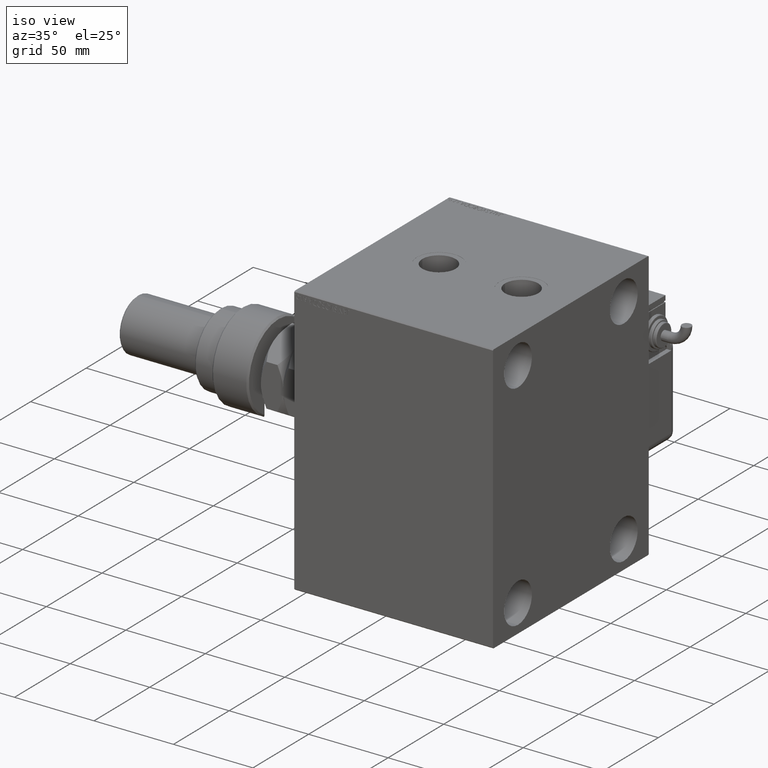
[diagram: clean part render]
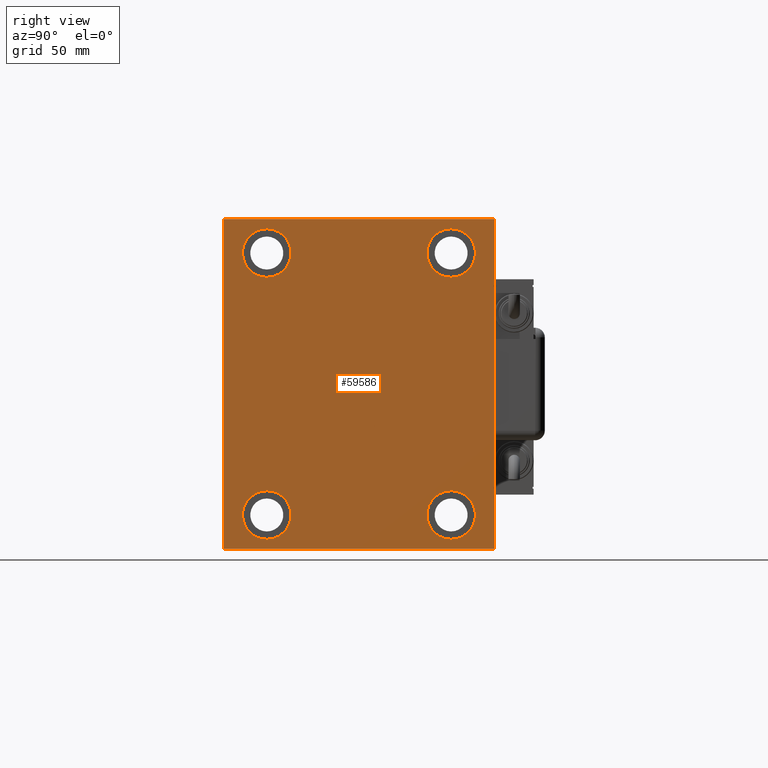
[diagram: tour spotlight — one face highlighted and labeled with its STEP entity id]
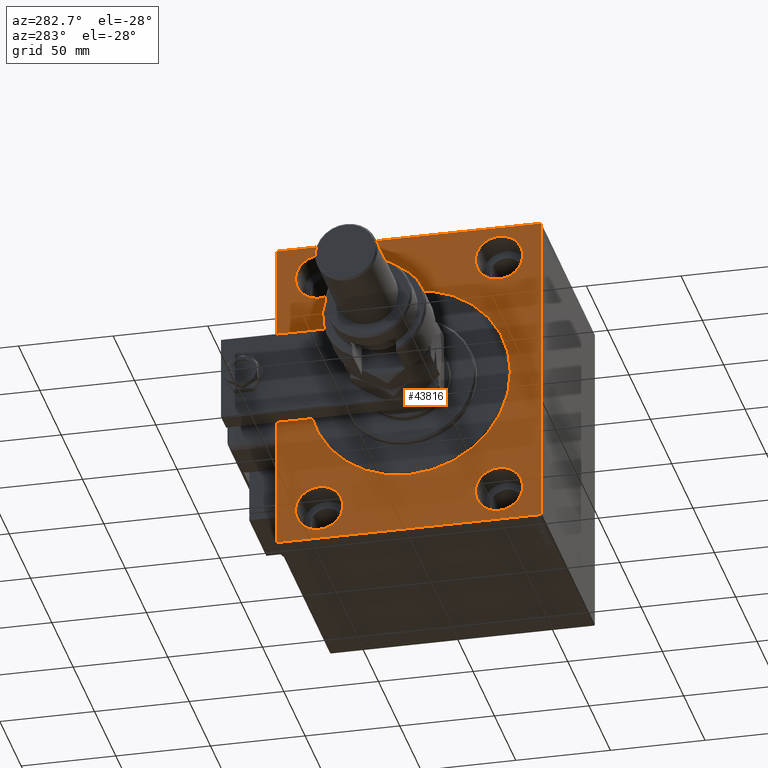
[diagram: tour spotlight — one face highlighted and labeled with its STEP entity id]
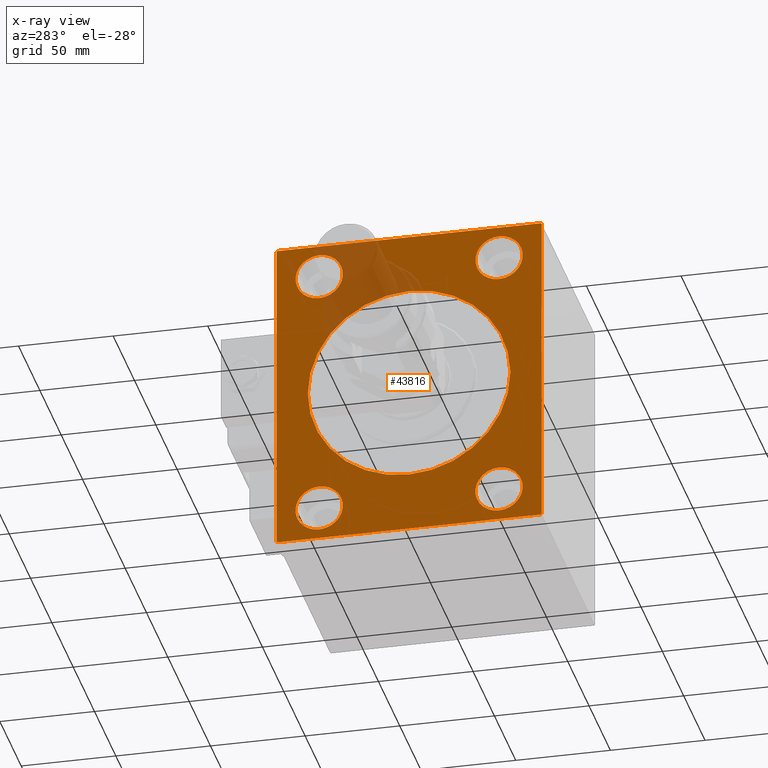
[diagram: x-ray of the same camera — body ghosted, this tour face saturated]
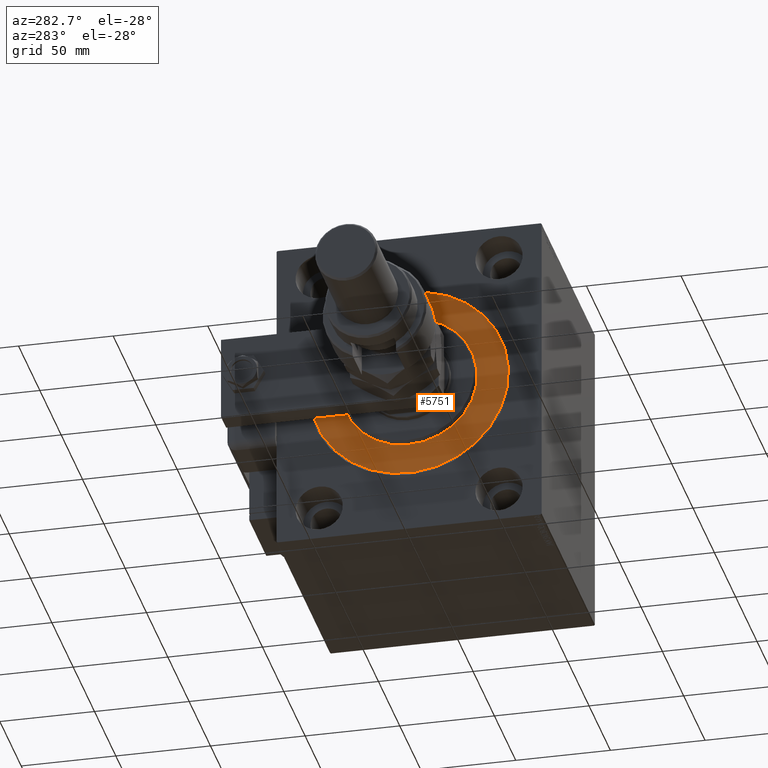
[diagram: tour spotlight — one face highlighted and labeled with its STEP entity id]
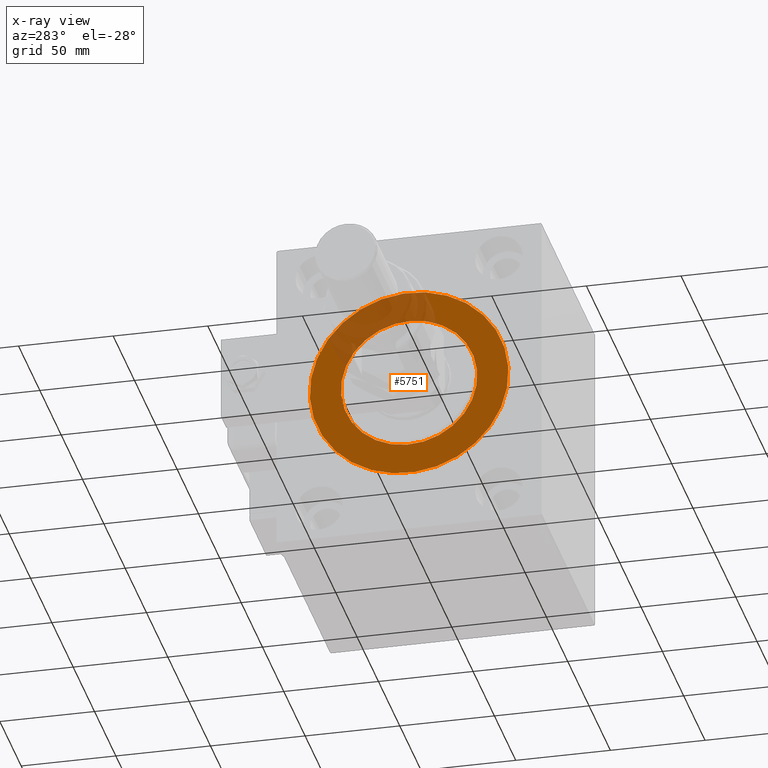
[diagram: x-ray of the same camera — body ghosted, this tour face saturated]
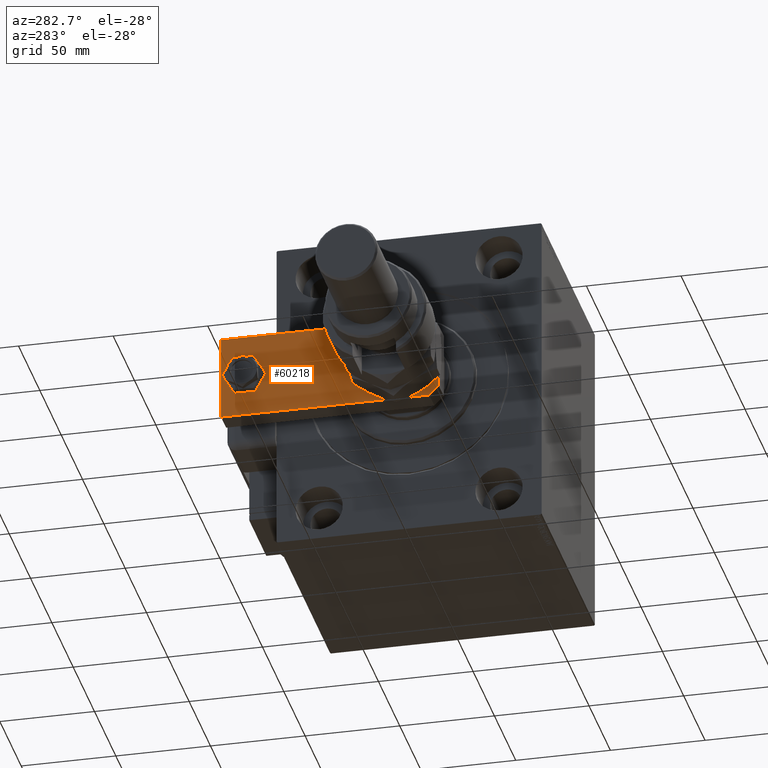
[diagram: tour spotlight — one face highlighted and labeled with its STEP entity id]
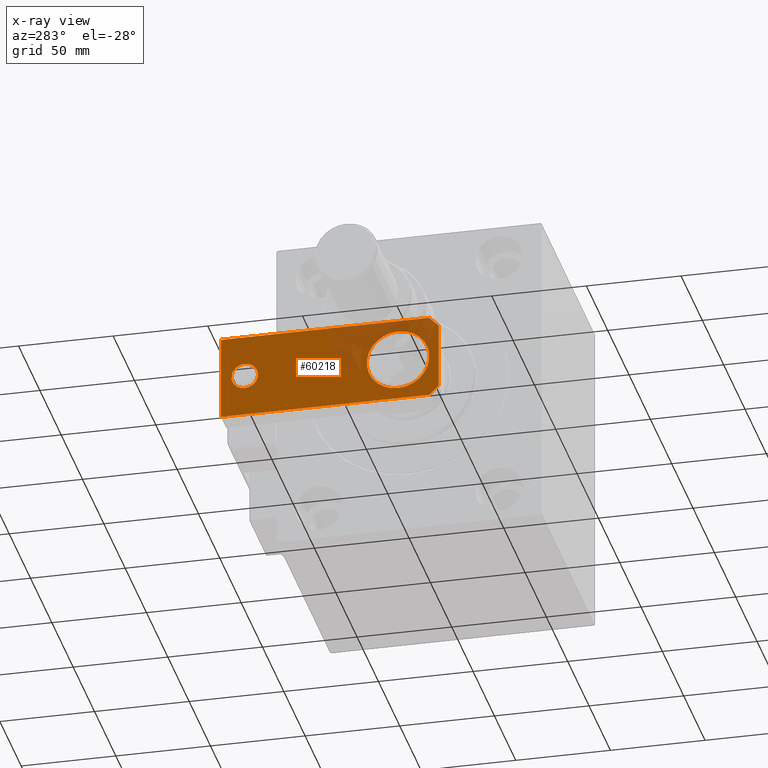
[diagram: x-ray of the same camera — body ghosted, this tour face saturated]
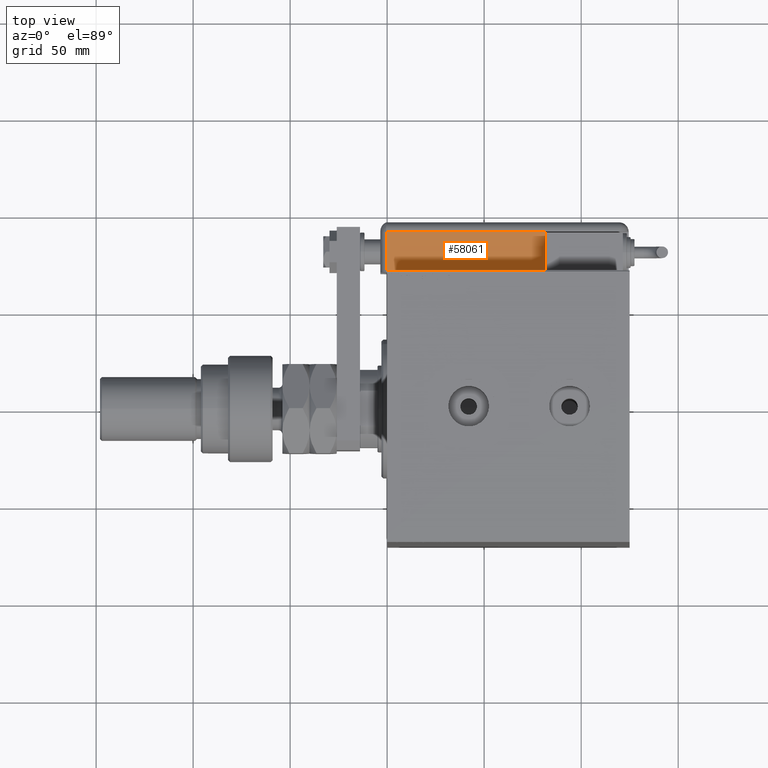
[diagram: tour spotlight — one face highlighted and labeled with its STEP entity id]
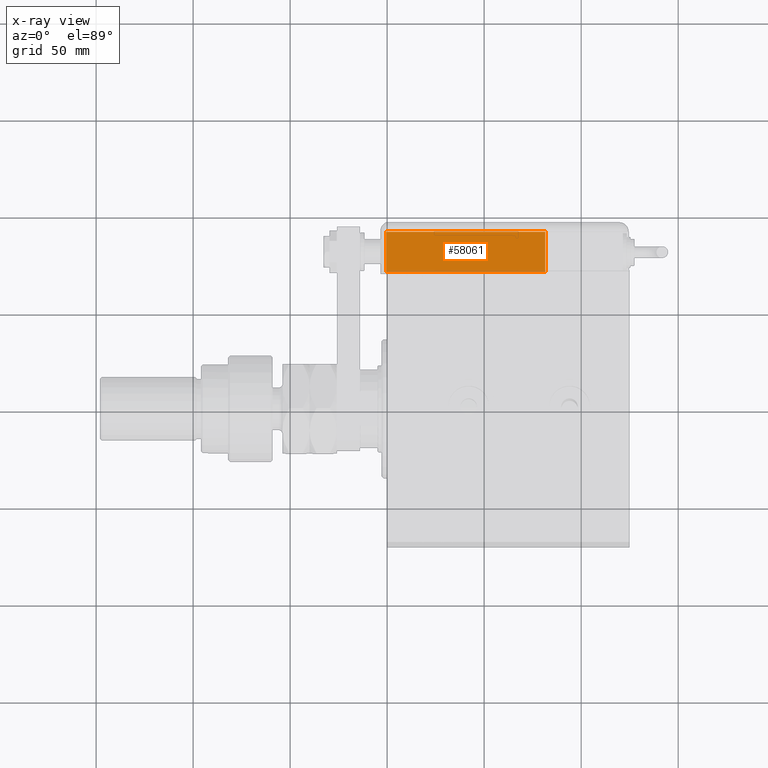
[diagram: x-ray of the same camera — body ghosted, this tour face saturated]
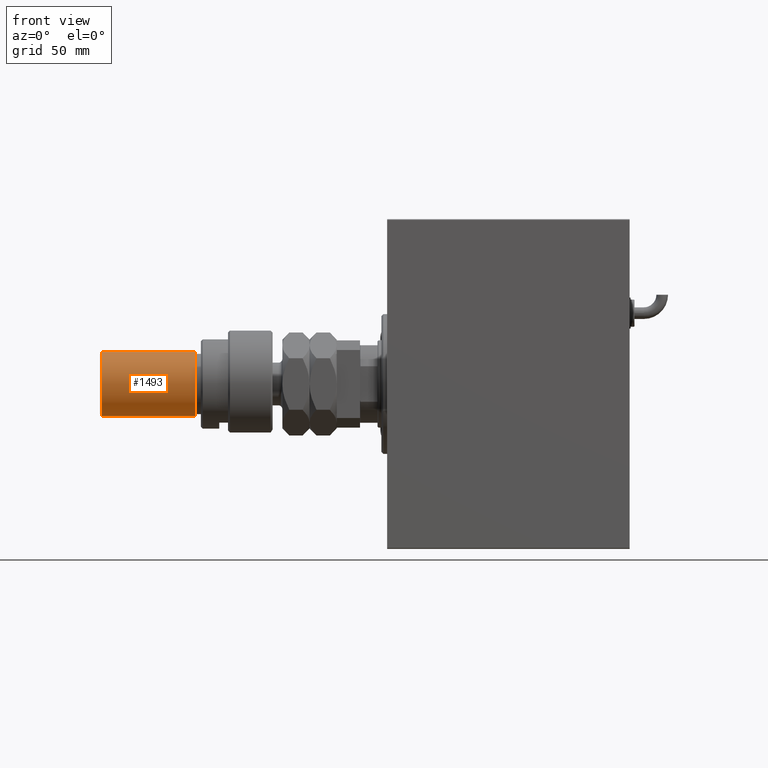
[diagram: tour spotlight — one face highlighted and labeled with its STEP entity id]
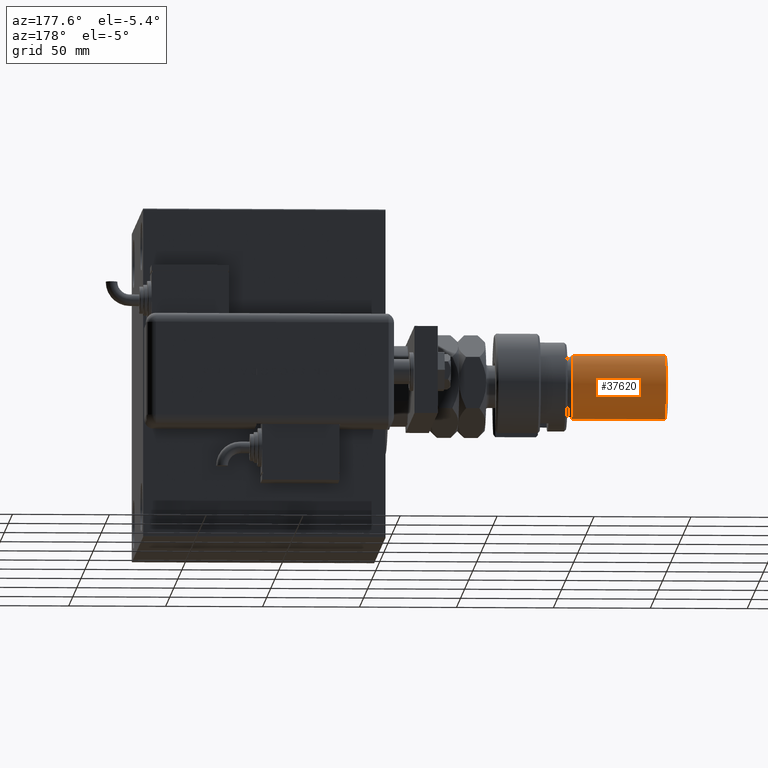
[diagram: tour spotlight — one face highlighted and labeled with its STEP entity id]
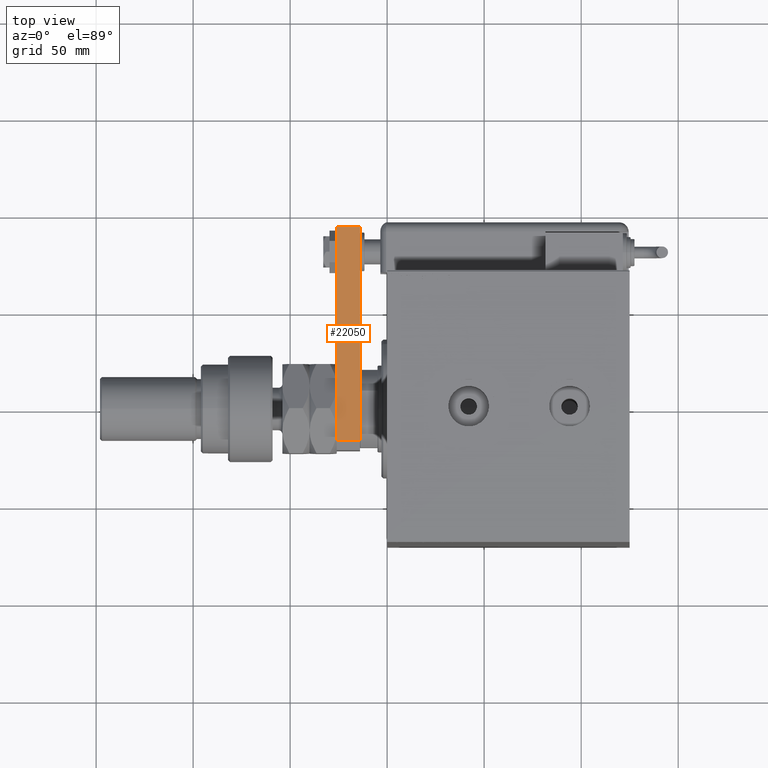
[diagram: tour spotlight — one face highlighted and labeled with its STEP entity id]
A machine part: a face-by-face anatomy tour. The part has 1335 B-rep faces; the first image is the clean iso view, then the 8 largest visible faces are spotlighted one at a time (largest first), each with its STEP entity span.

Face 1 — right view, entity #59586. In plain terms, the highlighted planar face has unit normal (1, 0, 0).
Definition (entity closure, byte-faithful):
#56 = EDGE_CURVE ( 'NONE', #57314, #31210, #47258, .T. ) ;
#1873 = EDGE_CURVE ( 'NONE', #26812, #49367, #43781, .T. ) ;
#2332 = DIRECTION ( 'NONE',  ( -1.000000000000000000, -0.000000000000000000, -0.000000000000000000 ) ) ;
#2488 = VECTOR ( 'NONE', #44302, 1000.000000000000000 ) ;
#2579 = EDGE_LOOP ( 'NONE', ( #30043, #35224, #10432, #5074, #47961, #43909, #60951, #13353 ) ) ;
#3540 = DIRECTION ( 'NONE',  ( 0.000000000000000000, -0.7071067811865474617, -0.7071067811865474617 ) ) ;
#4484 = CARTESIAN_POINT ( 'NONE',  ( 125.0000000000000000, -47.49999999999997868, 80.00000000000001421 ) ) ;
#5074 = ORIENTED_EDGE ( 'NONE', *, *, #47473, .T. ) ;
#5079 = CARTESIAN_POINT ( 'NONE',  ( 125.0000000000000000, -69.49999999999994316, -85.00000000000002842 ) ) ;
#5212 = CARTESIAN_POINT ( 'NONE',  ( 125.0000000000000000, 47.50000000000000711, 80.00000000000001421 ) ) ;
#5558 = CARTESIAN_POINT ( 'NONE',  ( 125.0000000000000000, 69.50000000000001421, -85.00000000000001421 ) ) ;
#5881 = AXIS2_PLACEMENT_3D ( 'NONE', #17662, #37005, #13212 ) ;
#5982 = FACE_BOUND ( 'NONE', #47194, .T. ) ;
#6130 = DIRECTION ( 'NONE',  ( 0.000000000000000000, 0.000000000000000000, 1.000000000000000000 ) ) ;
#6482 = ORIENTED_EDGE ( 'NONE', *, *, #27429, .T. ) ;
#6885 = CIRCLE ( 'NONE', #5881, 12.50000000000001066 ) ;
#8315 = CARTESIAN_POINT ( 'NONE',  ( 125.0000000000000000, -77.24999999999997158, 77.24999999999997158 ) ) ;
#9394 = DIRECTION ( 'NONE',  ( 0.000000000000000000, 0.000000000000000000, 1.000000000000000000 ) ) ;
#9511 = FACE_BOUND ( 'NONE', #48736, .T. ) ;
#9583 = AXIS2_PLACEMENT_3D ( 'NONE', #43424, #38675, #34839 ) ;
#10103 = DIRECTION ( 'NONE',  ( 0.000000000000000000, 0.000000000000000000, 1.000000000000000000 ) ) ;
#10432 = ORIENTED_EDGE ( 'NONE', *, *, #45859, .T. ) ;
#10593 = CARTESIAN_POINT ( 'NONE',  ( 125.0000000000000000, -47.49999999999999289, -67.50000000000000000 ) ) ;
#11560 = VERTEX_POINT ( 'NONE', #5079 ) ;
#12331 = CARTESIAN_POINT ( 'NONE',  ( 125.0000000000000000, 69.49999999999998579, 85.00000000000000000 ) ) ;
#12345 = VERTEX_POINT ( 'NONE', #20058 ) ;
#12683 = DIRECTION ( 'NONE',  ( -1.000000000000000000, -0.000000000000000000, -0.000000000000000000 ) ) ;
#13212 = DIRECTION ( 'NONE',  ( 0.000000000000000000, 0.000000000000000000, 1.000000000000000000 ) ) ;
#13353 = ORIENTED_EDGE ( 'NONE', *, *, #48407, .T. ) ;
#14136 = DIRECTION ( 'NONE',  ( -1.000000000000000000, -0.000000000000000000, -0.000000000000000000 ) ) ;
#14437 = DIRECTION ( 'NONE',  ( 0.000000000000000000, 0.000000000000000000, -1.000000000000000000 ) ) ;
#15239 = AXIS2_PLACEMENT_3D ( 'NONE', #31799, #23206, #37177 ) ;
#15506 = FACE_OUTER_BOUND ( 'NONE', #2579, .T. ) ;
#15579 = VERTEX_POINT ( 'NONE', #46249 ) ;
#15617 = ORIENTED_EDGE ( 'NONE', *, *, #56, .T. ) ;
#15680 = EDGE_CURVE ( 'NONE', #40875, #15579, #39525, .T. ) ;
#15930 = ORIENTED_EDGE ( 'NONE', *, *, #48597, .T. ) ;
#16084 = VERTEX_POINT ( 'NONE', #55214 ) ;
#16224 = ORIENTED_EDGE ( 'NONE', *, *, #30687, .T. ) ;
#16965 = CARTESIAN_POINT ( 'NONE',  ( 125.0000000000000000, 70.00000000000001421, 84.49999999999995737 ) ) ;
#17441 = CARTESIAN_POINT ( 'NONE',  ( 125.0000000000000000, -47.49999999999999289, -67.50000000000000000 ) ) ;
#17662 = CARTESIAN_POINT ( 'NONE',  ( 125.0000000000000000, 47.50000000000000711, 67.50000000000000000 ) ) ;
#17911 = CARTESIAN_POINT ( 'NONE',  ( 125.0000000000000000, 77.25000000000096634, 77.24999999999883471 ) ) ;
#19101 = EDGE_CURVE ( 'NONE', #11560, #40875, #48770, .T. ) ;
#19645 = VERTEX_POINT ( 'NONE', #16965 ) ;
#20058 = CARTESIAN_POINT ( 'NONE',  ( 125.0000000000000000, -69.99999999999998579, 84.49999999999995737 ) ) ;
#20219 = ORIENTED_EDGE ( 'NONE', *, *, #60916, .T. ) ;
#20254 = FACE_BOUND ( 'NONE', #21758, .T. ) ;
#21108 = CIRCLE ( 'NONE', #27179, 12.49999999999999645 ) ;
#21304 = VERTEX_POINT ( 'NONE', #24612 ) ;
#21758 = EDGE_LOOP ( 'NONE', ( #6482, #15930 ) ) ;
#21920 = DIRECTION ( 'NONE',  ( 0.000000000000000000, 0.000000000000000000, 1.000000000000000000 ) ) ;
#22055 = AXIS2_PLACEMENT_3D ( 'NONE', #38821, #30552, #6130 ) ;
#22358 = CARTESIAN_POINT ( 'NONE',  ( 125.0000000000000000, -47.49999999999999289, -55.00000000000000711 ) ) ;
#22504 = DIRECTION ( 'NONE',  ( -1.000000000000000000, -0.000000000000000000, -0.000000000000000000 ) ) ;
#23206 = DIRECTION ( 'NONE',  ( -1.000000000000000000, -0.000000000000000000, -0.000000000000000000 ) ) ;
#23329 = VECTOR ( 'NONE', #47076, 1000.000000000000000 ) ;
#24573 = DIRECTION ( 'NONE',  ( -1.000000000000000000, -0.000000000000000000, -0.000000000000000000 ) ) ;
#24612 = CARTESIAN_POINT ( 'NONE',  ( 125.0000000000000000, 47.50000000000000711, -55.00000000000000711 ) ) ;
#25077 = VECTOR ( 'NONE', #58992, 1000.000000000000000 ) ;
#25374 = CIRCLE ( 'NONE', #15239, 12.50000000000001066 ) ;
#25953 = VERTEX_POINT ( 'NONE', #4484 ) ;
#25993 = VECTOR ( 'NONE', #55380, 1000.000000000000000 ) ;
#26264 = EDGE_CURVE ( 'NONE', #15579, #19645, #56014, .T. ) ;
#26782 = VECTOR ( 'NONE', #14437, 1000.000000000000000 ) ;
#26812 = VERTEX_POINT ( 'NONE', #12331 ) ;
#27106 = DIRECTION ( 'NONE',  ( -0.000000000000000000, 0.7071067811865574537, -0.7071067811865376918 ) ) ;
#27162 = CARTESIAN_POINT ( 'NONE',  ( 125.0000000000000000, 70.00000000000002842, -85.00000000000001421 ) ) ;
#27179 = AXIS2_PLACEMENT_3D ( 'NONE', #56123, #12683, #10103 ) ;
#27429 = EDGE_CURVE ( 'NONE', #42809, #25953, #37189, .T. ) ;
#28031 = AXIS2_PLACEMENT_3D ( 'NONE', #10593, #24573, #21920 ) ;
#30043 = ORIENTED_EDGE ( 'NONE', *, *, #1873, .T. ) ;
#30088 = PLANE ( 'NONE',  #9583 ) ;
#30292 = EDGE_CURVE ( 'NONE', #49367, #12345, #31479, .T. ) ;
#30552 = DIRECTION ( 'NONE',  ( -1.000000000000000000, -0.000000000000000000, -0.000000000000000000 ) ) ;
#30687 = EDGE_CURVE ( 'NONE', #21304, #56184, #21108, .T. ) ;
#31163 = VECTOR ( 'NONE', #3540, 1000.000000000000114 ) ;
#31210 = VERTEX_POINT ( 'NONE', #22358 ) ;
#31479 = LINE ( 'NONE', #8315, #31163 ) ;
#31605 = ORIENTED_EDGE ( 'NONE', *, *, #33174, .T. ) ;
#31799 = CARTESIAN_POINT ( 'NONE',  ( 125.0000000000000000, -47.49999999999997868, 67.50000000000000000 ) ) ;
#33174 = EDGE_CURVE ( 'NONE', #56184, #21304, #37228, .T. ) ;
#33506 = AXIS2_PLACEMENT_3D ( 'NONE', #17441, #22504, #51352 ) ;
#33955 = CARTESIAN_POINT ( 'NONE',  ( 125.0000000000000000, 70.00000000000001421, 85.00000000000000000 ) ) ;
#34084 = CARTESIAN_POINT ( 'NONE',  ( 125.0000000000000000, -69.99999999999998579, 84.99999999999998579 ) ) ;
#34486 = CIRCLE ( 'NONE', #33506, 12.49999999999999645 ) ;
#34765 = EDGE_CURVE ( 'NONE', #16084, #52095, #6885, .T. ) ;
#34839 = DIRECTION ( 'NONE',  ( 0.000000000000000000, 0.000000000000000000, -1.000000000000000000 ) ) ;
#35224 = ORIENTED_EDGE ( 'NONE', *, *, #30292, .T. ) ;
#35263 = EDGE_LOOP ( 'NONE', ( #52391, #20219 ) ) ;
#36336 = CARTESIAN_POINT ( 'NONE',  ( 125.0000000000000000, -47.49999999999997868, 55.00000000000000000 ) ) ;
#37005 = DIRECTION ( 'NONE',  ( -1.000000000000000000, -0.000000000000000000, -0.000000000000000000 ) ) ;
#37013 = AXIS2_PLACEMENT_3D ( 'NONE', #57585, #14136, #9394 ) ;
#37177 = DIRECTION ( 'NONE',  ( 0.000000000000000000, 0.000000000000000000, 1.000000000000000000 ) ) ;
#37189 = CIRCLE ( 'NONE', #46282, 12.50000000000001066 ) ;
#37228 = CIRCLE ( 'NONE', #22055, 12.49999999999999645 ) ;
#37559 = LINE ( 'NONE', #17911, #23329 ) ;
#38293 = CARTESIAN_POINT ( 'NONE',  ( 125.0000000000000000, -69.49999999999997158, 84.99999999999998579 ) ) ;
#38675 = DIRECTION ( 'NONE',  ( 1.000000000000000000, 0.000000000000000000, 0.000000000000000000 ) ) ;
#38821 = CARTESIAN_POINT ( 'NONE',  ( 125.0000000000000000, 47.50000000000000711, -67.50000000000000000 ) ) ;
#39525 = LINE ( 'NONE', #55930, #58873 ) ;
#39600 = FACE_BOUND ( 'NONE', #35263, .T. ) ;
#40260 = EDGE_CURVE ( 'NONE', #31210, #57314, #34486, .T. ) ;
#40875 = VERTEX_POINT ( 'NONE', #5558 ) ;
#41081 = CIRCLE ( 'NONE', #37013, 12.50000000000001066 ) ;
#41199 = VERTEX_POINT ( 'NONE', #59944 ) ;
#41348 = DIRECTION ( 'NONE',  ( 0.000000000000000000, 0.000000000000000000, 1.000000000000000000 ) ) ;
#41977 = CARTESIAN_POINT ( 'NONE',  ( 125.0000000000000000, -47.49999999999997868, 67.50000000000000000 ) ) ;
#42304 = LINE ( 'NONE', #47365, #59919 ) ;
#42809 = VERTEX_POINT ( 'NONE', #36336 ) ;
#43377 = CARTESIAN_POINT ( 'NONE',  ( 125.0000000000000000, -69.99999999999998579, -85.00000000000002842 ) ) ;
#43424 = CARTESIAN_POINT ( 'NONE',  ( 125.0000000000000000, 0.000000000000000000, 0.000000000000000000 ) ) ;
#43781 = LINE ( 'NONE', #33955, #25077 ) ;
#43909 = ORIENTED_EDGE ( 'NONE', *, *, #15680, .T. ) ;
#44188 = CARTESIAN_POINT ( 'NONE',  ( 125.0000000000000000, 47.50000000000000711, -80.00000000000000000 ) ) ;
#44302 = DIRECTION ( 'NONE',  ( 0.000000000000000000, 1.000000000000000000, 9.912705577010325549E-17 ) ) ;
#45859 = EDGE_CURVE ( 'NONE', #12345, #41199, #57882, .T. ) ;
#46249 = CARTESIAN_POINT ( 'NONE',  ( 125.0000000000000000, 70.00000000000002842, -84.50000000000004263 ) ) ;
#46282 = AXIS2_PLACEMENT_3D ( 'NONE', #41977, #2332, #41348 ) ;
#47076 = DIRECTION ( 'NONE',  ( -0.000000000000000000, -0.7071067811865378028, 0.7071067811865573427 ) ) ;
#47194 = EDGE_LOOP ( 'NONE', ( #31605, #16224 ) ) ;
#47258 = CIRCLE ( 'NONE', #28031, 12.49999999999999645 ) ;
#47365 = CARTESIAN_POINT ( 'NONE',  ( 125.0000000000000000, -77.24999999999901945, -77.25000000000116529 ) ) ;
#47473 = EDGE_CURVE ( 'NONE', #41199, #11560, #42304, .T. ) ;
#47961 = ORIENTED_EDGE ( 'NONE', *, *, #19101, .T. ) ;
#48407 = EDGE_CURVE ( 'NONE', #19645, #26812, #37559, .T. ) ;
#48597 = EDGE_CURVE ( 'NONE', #25953, #42809, #25374, .T. ) ;
#48736 = EDGE_LOOP ( 'NONE', ( #15617, #59925 ) ) ;
#48770 = LINE ( 'NONE', #43377, #2488 ) ;
#49367 = VERTEX_POINT ( 'NONE', #38293 ) ;
#51352 = DIRECTION ( 'NONE',  ( 0.000000000000000000, 0.000000000000000000, 1.000000000000000000 ) ) ;
#52095 = VERTEX_POINT ( 'NONE', #5212 ) ;
#52391 = ORIENTED_EDGE ( 'NONE', *, *, #34765, .T. ) ;
#54409 = DIRECTION ( 'NONE',  ( -0.000000000000000000, 0.7071067811865769936, 0.7071067811865181518 ) ) ;
#55214 = CARTESIAN_POINT ( 'NONE',  ( 125.0000000000000000, 47.50000000000000711, 55.00000000000000000 ) ) ;
#55380 = DIRECTION ( 'NONE',  ( 0.000000000000000000, -8.163404592832031500E-17, 1.000000000000000000 ) ) ;
#55930 = CARTESIAN_POINT ( 'NONE',  ( 125.0000000000000000, 77.24999999999714362, -77.25000000000356692 ) ) ;
#56014 = LINE ( 'NONE', #27162, #25993 ) ;
#56123 = CARTESIAN_POINT ( 'NONE',  ( 125.0000000000000000, 47.50000000000000711, -67.50000000000000000 ) ) ;
#56184 = VERTEX_POINT ( 'NONE', #44188 ) ;
#57314 = VERTEX_POINT ( 'NONE', #58641 ) ;
#57585 = CARTESIAN_POINT ( 'NONE',  ( 125.0000000000000000, 47.50000000000000711, 67.50000000000000000 ) ) ;
#57882 = LINE ( 'NONE', #34084, #26782 ) ;
#58641 = CARTESIAN_POINT ( 'NONE',  ( 125.0000000000000000, -47.49999999999999289, -80.00000000000000000 ) ) ;
#58873 = VECTOR ( 'NONE', #54409, 1000.000000000000000 ) ;
#58992 = DIRECTION ( 'NONE',  ( 0.000000000000000000, -1.000000000000000000, -9.912705577010325549E-17 ) ) ;
#59586 = ADVANCED_FACE ( 'NONE', ( #5982, #20254, #39600, #9511, #15506 ), #30088, .T. ) ;
#59919 = VECTOR ( 'NONE', #27106, 999.9999999999998863 ) ;
#59925 = ORIENTED_EDGE ( 'NONE', *, *, #40260, .T. ) ;
#59944 = CARTESIAN_POINT ( 'NONE',  ( 125.0000000000000000, -69.99999999999998579, -84.49999999999998579 ) ) ;
#60916 = EDGE_CURVE ( 'NONE', #52095, #16084, #41081, .T. ) ;
#60951 = ORIENTED_EDGE ( 'NONE', *, *, #26264, .T. ) ;

Face 2 — auxiliary view, entity #43816. An x-ray twin of the same camera follows (body ghosted, this face saturated) — the face is partly hidden behind the body. In plain terms, the highlighted planar face has unit normal (1, 0, 0).
Definition (entity closure, byte-faithful):
#98 = DIRECTION ( 'NONE',  ( -1.000000000000000000, 0.000000000000000000, 0.000000000000000000 ) ) ;
#126 = CARTESIAN_POINT ( 'NONE',  ( 0.000000000000000000, 47.50000000000000711, 55.00000000000000000 ) ) ;
#783 = EDGE_CURVE ( 'NONE', #15692, #32544, #55398, .T. ) ;
#924 = DIRECTION ( 'NONE',  ( 0.000000000000000000, 0.000000000000000000, 1.000000000000000000 ) ) ;
#1706 = EDGE_CURVE ( 'NONE', #17876, #38775, #2903, .T. ) ;
#1930 = CIRCLE ( 'NONE', #8035, 12.50000000000001066 ) ;
#2019 = CIRCLE ( 'NONE', #11130, 12.50000000000001066 ) ;
#2546 = DIRECTION ( 'NONE',  ( 0.000000000000000000, 0.000000000000000000, 1.000000000000000000 ) ) ;
#2609 = DIRECTION ( 'NONE',  ( 0.000000000000000000, 0.000000000000000000, 1.000000000000000000 ) ) ;
#2903 = LINE ( 'NONE', #40340, #32202 ) ;
#3351 = DIRECTION ( 'NONE',  ( 1.000000000000000000, 0.000000000000000000, 0.000000000000000000 ) ) ;
#3406 = CARTESIAN_POINT ( 'NONE',  ( 0.000000000000000000, 70.00000000000002842, -85.00000000000001421 ) ) ;
#4021 = CARTESIAN_POINT ( 'NONE',  ( 0.000000000000000000, 47.50000000000000711, -80.00000000000000000 ) ) ;
#4108 = VECTOR ( 'NONE', #62219, 999.9999999999998863 ) ;
#4671 = CARTESIAN_POINT ( 'NONE',  ( 0.000000000000000000, 69.50000000000001421, -85.00000000000001421 ) ) ;
#4748 = AXIS2_PLACEMENT_3D ( 'NONE', #23010, #3351, #32534 ) ;
#4925 = CARTESIAN_POINT ( 'NONE',  ( 0.000000000000000000, -47.49999999999999289, -67.50000000000000000 ) ) ;
#5874 = DIRECTION ( 'NONE',  ( -1.000000000000000000, 0.000000000000000000, 0.000000000000000000 ) ) ;
#6226 = CARTESIAN_POINT ( 'NONE',  ( 0.000000000000000000, 0.000000000000000000, 53.50000000000002842 ) ) ;
#6785 = EDGE_CURVE ( 'NONE', #17320, #26849, #46087, .T. ) ;
#7090 = DIRECTION ( 'NONE',  ( 0.000000000000000000, 1.000000000000000000, 9.912705577010325549E-17 ) ) ;
#7430 = EDGE_CURVE ( 'NONE', #42643, #37590, #8803, .T. ) ;
#7940 = VECTOR ( 'NONE', #45344, 1000.000000000000000 ) ;
#7969 = DIRECTION ( 'NONE',  ( 1.000000000000000000, 0.000000000000000000, 0.000000000000000000 ) ) ;
#8035 = AXIS2_PLACEMENT_3D ( 'NONE', #11823, #31175, #2609 ) ;
#8280 = CIRCLE ( 'NONE', #33582, 12.49999999999999645 ) ;
#8790 = DIRECTION ( 'NONE',  ( 0.000000000000000000, -0.7071067811865769936, -0.7071067811865181518 ) ) ;
#8803 = LINE ( 'NONE', #3406, #43540 ) ;
#9032 = EDGE_CURVE ( 'NONE', #32544, #15692, #34304, .T. ) ;
#9580 = DIRECTION ( 'NONE',  ( -0.000000000000000000, 0.7071067811865474617, 0.7071067811865474617 ) ) ;
#9633 = CARTESIAN_POINT ( 'NONE',  ( 0.000000000000000000, -47.49999999999997868, 80.00000000000001421 ) ) ;
#9930 = VERTEX_POINT ( 'NONE', #126 ) ;
#10699 = CARTESIAN_POINT ( 'NONE',  ( 0.000000000000000000, -69.49999999999997158, 84.99999999999998579 ) ) ;
#10751 = EDGE_CURVE ( 'NONE', #36905, #60588, #43532, .T. ) ;
#11130 = AXIS2_PLACEMENT_3D ( 'NONE', #29380, #44251, #49637 ) ;
#11823 = CARTESIAN_POINT ( 'NONE',  ( 0.000000000000000000, 47.50000000000000711, 67.50000000000000000 ) ) ;
#12084 = FACE_BOUND ( 'NONE', #12094, .T. ) ;
#12094 = EDGE_LOOP ( 'NONE', ( #47726, #25563 ) ) ;
#12401 = CARTESIAN_POINT ( 'NONE',  ( 0.000000000000000000, 47.50000000000000711, 67.50000000000000000 ) ) ;
#12704 = EDGE_CURVE ( 'NONE', #32604, #40514, #52500, .T. ) ;
#12969 = ORIENTED_EDGE ( 'NONE', *, *, #12704, .F. ) ;
#13017 = VERTEX_POINT ( 'NONE', #9633 ) ;
#13107 = ORIENTED_EDGE ( 'NONE', *, *, #35963, .F. ) ;
#14165 = CARTESIAN_POINT ( 'NONE',  ( 0.000000000000000000, 70.00000000000002842, -84.50000000000004263 ) ) ;
#14253 = ORIENTED_EDGE ( 'NONE', *, *, #57710, .T. ) ;
#15405 = DIRECTION ( 'NONE',  ( 0.000000000000000000, 0.000000000000000000, 1.000000000000000000 ) ) ;
#15425 = CARTESIAN_POINT ( 'NONE',  ( 0.000000000000000000, 70.00000000000002842, -84.50000000000004263 ) ) ;
#15501 = CIRCLE ( 'NONE', #23606, 12.50000000000001066 ) ;
#15635 = ORIENTED_EDGE ( 'NONE', *, *, #33568, .T. ) ;
#15692 = VERTEX_POINT ( 'NONE', #6226 ) ;
#16215 = FACE_BOUND ( 'NONE', #21855, .T. ) ;
#16262 = VERTEX_POINT ( 'NONE', #33624 ) ;
#17301 = VECTOR ( 'NONE', #42369, 1000.000000000000000 ) ;
#17320 = VERTEX_POINT ( 'NONE', #18038 ) ;
#17600 = EDGE_CURVE ( 'NONE', #50630, #28963, #57984, .T. ) ;
#17876 = VERTEX_POINT ( 'NONE', #46969 ) ;
#18038 = CARTESIAN_POINT ( 'NONE',  ( 0.000000000000000000, -69.49999999999994316, -85.00000000000002842 ) ) ;
#18154 = CARTESIAN_POINT ( 'NONE',  ( 0.000000000000000000, 6.551860375438343048E-15, -53.50000000000002842 ) ) ;
#18474 = LINE ( 'NONE', #42874, #4108 ) ;
#19475 = DIRECTION ( 'NONE',  ( 0.000000000000000000, 0.000000000000000000, 1.000000000000000000 ) ) ;
#20478 = CARTESIAN_POINT ( 'NONE',  ( 0.000000000000000000, -69.99999999999998579, -84.49999999999998579 ) ) ;
#20970 = DIRECTION ( 'NONE',  ( 0.000000000000000000, 0.000000000000000000, -1.000000000000000000 ) ) ;
#21855 = EDGE_LOOP ( 'NONE', ( #22695, #44977 ) ) ;
#21907 = DIRECTION ( 'NONE',  ( 1.000000000000000000, 0.000000000000000000, 0.000000000000000000 ) ) ;
#22070 = ORIENTED_EDGE ( 'NONE', *, *, #48090, .F. ) ;
#22279 = CARTESIAN_POINT ( 'NONE',  ( 0.000000000000000000, 69.49999999999998579, 85.00000000000000000 ) ) ;
#22695 = ORIENTED_EDGE ( 'NONE', *, *, #783, .T. ) ;
#22720 = CARTESIAN_POINT ( 'NONE',  ( 0.000000000000000000, 70.00000000000001421, 85.00000000000000000 ) ) ;
#23010 = CARTESIAN_POINT ( 'NONE',  ( 0.000000000000000000, 0.000000000000000000, 0.000000000000000000 ) ) ;
#23089 = CARTESIAN_POINT ( 'NONE',  ( 0.000000000000000000, 47.50000000000000711, -67.50000000000000000 ) ) ;
#23606 = AXIS2_PLACEMENT_3D ( 'NONE', #12401, #40927, #2546 ) ;
#23994 = LINE ( 'NONE', #14165, #28732 ) ;
#24226 = CARTESIAN_POINT ( 'NONE',  ( 0.000000000000000000, -47.49999999999997868, 67.50000000000000000 ) ) ;
#25171 = CIRCLE ( 'NONE', #46466, 12.50000000000001066 ) ;
#25289 = AXIS2_PLACEMENT_3D ( 'NONE', #23089, #51941, #52561 ) ;
#25402 = CARTESIAN_POINT ( 'NONE',  ( 0.000000000000000000, -69.99999999999998579, 84.49999999999995737 ) ) ;
#25563 = ORIENTED_EDGE ( 'NONE', *, *, #17600, .F. ) ;
#26130 = ORIENTED_EDGE ( 'NONE', *, *, #30594, .T. ) ;
#26571 = ORIENTED_EDGE ( 'NONE', *, *, #40202, .T. ) ;
#26849 = VERTEX_POINT ( 'NONE', #4671 ) ;
#26988 = FACE_BOUND ( 'NONE', #62774, .T. ) ;
#27019 = CARTESIAN_POINT ( 'NONE',  ( 0.000000000000000000, 47.50000000000000711, -55.00000000000000711 ) ) ;
#27029 = DIRECTION ( 'NONE',  ( 0.000000000000000000, 0.000000000000000000, -1.000000000000000000 ) ) ;
#27098 = CARTESIAN_POINT ( 'NONE',  ( 0.000000000000000000, -47.49999999999999289, -80.00000000000000000 ) ) ;
#28189 = ORIENTED_EDGE ( 'NONE', *, *, #38727, .F. ) ;
#28732 = VECTOR ( 'NONE', #8790, 1000.000000000000000 ) ;
#28853 = EDGE_CURVE ( 'NONE', #28963, #50630, #57460, .T. ) ;
#28963 = VERTEX_POINT ( 'NONE', #53205 ) ;
#29334 = VECTOR ( 'NONE', #7090, 1000.000000000000000 ) ;
#29380 = CARTESIAN_POINT ( 'NONE',  ( 0.000000000000000000, -47.49999999999997868, 67.50000000000000000 ) ) ;
#29827 = LINE ( 'NONE', #35201, #7940 ) ;
#30432 = CARTESIAN_POINT ( 'NONE',  ( 0.000000000000000000, -47.49999999999999289, -67.50000000000000000 ) ) ;
#30594 = EDGE_CURVE ( 'NONE', #32604, #37590, #29827, .T. ) ;
#31175 = DIRECTION ( 'NONE',  ( -1.000000000000000000, 0.000000000000000000, 0.000000000000000000 ) ) ;
#31302 = ORIENTED_EDGE ( 'NONE', *, *, #36033, .F. ) ;
#32069 = CARTESIAN_POINT ( 'NONE',  ( 0.000000000000000000, 0.000000000000000000, 0.000000000000000000 ) ) ;
#32202 = VECTOR ( 'NONE', #27029, 1000.000000000000000 ) ;
#32534 = DIRECTION ( 'NONE',  ( 0.000000000000000000, 0.000000000000000000, -1.000000000000000000 ) ) ;
#32544 = VERTEX_POINT ( 'NONE', #18154 ) ;
#32601 = VERTEX_POINT ( 'NONE', #60982 ) ;
#32604 = VERTEX_POINT ( 'NONE', #22279 ) ;
#33568 = EDGE_CURVE ( 'NONE', #17876, #40514, #38748, .T. ) ;
#33582 = AXIS2_PLACEMENT_3D ( 'NONE', #43935, #5874, #15405 ) ;
#33624 = CARTESIAN_POINT ( 'NONE',  ( 0.000000000000000000, 47.50000000000000711, 80.00000000000001421 ) ) ;
#34304 = CIRCLE ( 'NONE', #48479, 53.50000000000002842 ) ;
#34761 = EDGE_LOOP ( 'NONE', ( #45624, #31302 ) ) ;
#35148 = ORIENTED_EDGE ( 'NONE', *, *, #7430, .F. ) ;
#35201 = CARTESIAN_POINT ( 'NONE',  ( 0.000000000000000000, 69.49999999999998579, 85.00000000000000000 ) ) ;
#35963 = EDGE_CURVE ( 'NONE', #32601, #13017, #25171, .T. ) ;
#36033 = EDGE_CURVE ( 'NONE', #9930, #16262, #1930, .T. ) ;
#36818 = FACE_BOUND ( 'NONE', #50933, .T. ) ;
#36905 = VERTEX_POINT ( 'NONE', #4021 ) ;
#37590 = VERTEX_POINT ( 'NONE', #56655 ) ;
#37657 = DIRECTION ( 'NONE',  ( 0.000000000000000000, -8.163404592832031500E-17, 1.000000000000000000 ) ) ;
#38209 = AXIS2_PLACEMENT_3D ( 'NONE', #30432, #49148, #924 ) ;
#38727 = EDGE_CURVE ( 'NONE', #13017, #32601, #2019, .T. ) ;
#38748 = LINE ( 'NONE', #25402, #45305 ) ;
#38775 = VERTEX_POINT ( 'NONE', #20478 ) ;
#39161 = DIRECTION ( 'NONE',  ( -1.000000000000000000, 0.000000000000000000, 0.000000000000000000 ) ) ;
#40202 = EDGE_CURVE ( 'NONE', #17320, #38775, #18474, .T. ) ;
#40340 = CARTESIAN_POINT ( 'NONE',  ( 0.000000000000000000, -69.99999999999998579, 84.99999999999998579 ) ) ;
#40514 = VERTEX_POINT ( 'NONE', #10699 ) ;
#40927 = DIRECTION ( 'NONE',  ( -1.000000000000000000, 0.000000000000000000, 0.000000000000000000 ) ) ;
#41599 = ORIENTED_EDGE ( 'NONE', *, *, #10751, .F. ) ;
#42369 = DIRECTION ( 'NONE',  ( 0.000000000000000000, -1.000000000000000000, -9.912705577010325549E-17 ) ) ;
#42643 = VERTEX_POINT ( 'NONE', #15425 ) ;
#42772 = AXIS2_PLACEMENT_3D ( 'NONE', #50773, #21907, #20970 ) ;
#42874 = CARTESIAN_POINT ( 'NONE',  ( 0.000000000000000000, -69.49999999999994316, -85.00000000000002842 ) ) ;
#42965 = EDGE_LOOP ( 'NONE', ( #57640, #15635, #12969, #26130, #35148, #14253, #52954, #26571 ) ) ;
#43532 = CIRCLE ( 'NONE', #25289, 12.49999999999999645 ) ;
#43540 = VECTOR ( 'NONE', #37657, 1000.000000000000000 ) ;
#43816 = ADVANCED_FACE ( 'NONE', ( #16215, #36818, #26988, #50457, #12084, #55837 ), #46012, .F. ) ;
#43935 = CARTESIAN_POINT ( 'NONE',  ( 0.000000000000000000, 47.50000000000000711, -67.50000000000000000 ) ) ;
#44251 = DIRECTION ( 'NONE',  ( -1.000000000000000000, 0.000000000000000000, 0.000000000000000000 ) ) ;
#44977 = ORIENTED_EDGE ( 'NONE', *, *, #9032, .T. ) ;
#45305 = VECTOR ( 'NONE', #9580, 1000.000000000000114 ) ;
#45344 = DIRECTION ( 'NONE',  ( -0.000000000000000000, 0.7071067811865378028, -0.7071067811865573427 ) ) ;
#45624 = ORIENTED_EDGE ( 'NONE', *, *, #56438, .F. ) ;
#46012 = PLANE ( 'NONE',  #42772 ) ;
#46087 = LINE ( 'NONE', #46714, #29334 ) ;
#46466 = AXIS2_PLACEMENT_3D ( 'NONE', #24226, #98, #19475 ) ;
#46714 = CARTESIAN_POINT ( 'NONE',  ( 0.000000000000000000, -69.99999999999998579, -85.00000000000002842 ) ) ;
#46969 = CARTESIAN_POINT ( 'NONE',  ( 0.000000000000000000, -69.99999999999998579, 84.49999999999995737 ) ) ;
#47726 = ORIENTED_EDGE ( 'NONE', *, *, #28853, .F. ) ;
#47831 = AXIS2_PLACEMENT_3D ( 'NONE', #4925, #39161, #48060 ) ;
#48060 = DIRECTION ( 'NONE',  ( 0.000000000000000000, 0.000000000000000000, 1.000000000000000000 ) ) ;
#48090 = EDGE_CURVE ( 'NONE', #60588, #36905, #8280, .T. ) ;
#48479 = AXIS2_PLACEMENT_3D ( 'NONE', #32069, #7969, #51405 ) ;
#49148 = DIRECTION ( 'NONE',  ( -1.000000000000000000, 0.000000000000000000, 0.000000000000000000 ) ) ;
#49637 = DIRECTION ( 'NONE',  ( 0.000000000000000000, 0.000000000000000000, 1.000000000000000000 ) ) ;
#50457 = FACE_BOUND ( 'NONE', #34761, .T. ) ;
#50630 = VERTEX_POINT ( 'NONE', #27098 ) ;
#50773 = CARTESIAN_POINT ( 'NONE',  ( 0.000000000000000000, 0.000000000000000000, 0.000000000000000000 ) ) ;
#50933 = EDGE_LOOP ( 'NONE', ( #22070, #41599 ) ) ;
#51405 = DIRECTION ( 'NONE',  ( 0.000000000000000000, 0.000000000000000000, -1.000000000000000000 ) ) ;
#51941 = DIRECTION ( 'NONE',  ( -1.000000000000000000, 0.000000000000000000, 0.000000000000000000 ) ) ;
#52500 = LINE ( 'NONE', #22720, #17301 ) ;
#52561 = DIRECTION ( 'NONE',  ( 0.000000000000000000, 0.000000000000000000, 1.000000000000000000 ) ) ;
#52954 = ORIENTED_EDGE ( 'NONE', *, *, #6785, .F. ) ;
#53205 = CARTESIAN_POINT ( 'NONE',  ( 0.000000000000000000, -47.49999999999999289, -55.00000000000000711 ) ) ;
#55398 = CIRCLE ( 'NONE', #4748, 53.50000000000002842 ) ;
#55837 = FACE_OUTER_BOUND ( 'NONE', #42965, .T. ) ;
#56438 = EDGE_CURVE ( 'NONE', #16262, #9930, #15501, .T. ) ;
#56655 = CARTESIAN_POINT ( 'NONE',  ( 0.000000000000000000, 70.00000000000001421, 84.49999999999995737 ) ) ;
#57460 = CIRCLE ( 'NONE', #38209, 12.49999999999999645 ) ;
#57640 = ORIENTED_EDGE ( 'NONE', *, *, #1706, .F. ) ;
#57710 = EDGE_CURVE ( 'NONE', #42643, #26849, #23994, .T. ) ;
#57984 = CIRCLE ( 'NONE', #47831, 12.49999999999999645 ) ;
#60588 = VERTEX_POINT ( 'NONE', #27019 ) ;
#60982 = CARTESIAN_POINT ( 'NONE',  ( 0.000000000000000000, -47.49999999999997868, 55.00000000000000000 ) ) ;
#62219 = DIRECTION ( 'NONE',  ( -0.000000000000000000, -0.7071067811865574537, 0.7071067811865376918 ) ) ;
#62774 = EDGE_LOOP ( 'NONE', ( #28189, #13107 ) ) ;

Face 3 — auxiliary view, entity #5751. An x-ray twin of the same camera follows (body ghosted, this face saturated) — the face is partly hidden behind the body. In plain terms, the highlighted planar face has unit normal (1, 0, -0).
Definition (entity closure, byte-faithful):
#1059 = DIRECTION ( 'NONE',  ( 0.000000000000000000, 0.000000000000000000, -1.000000000000000000 ) ) ;
#1060 = EDGE_CURVE ( 'NONE', #41683, #1152, #5781, .T. ) ;
#1152 = VERTEX_POINT ( 'NONE', #32320 ) ;
#1237 = DIRECTION ( 'NONE',  ( 1.000000000000000000, -0.000000000000000000, 0.000000000000000000 ) ) ;
#5751 = ADVANCED_FACE ( 'NONE', ( #54290, #25451 ), #40030, .F. ) ;
#5781 = CIRCLE ( 'NONE', #53358, 36.00000000000000000 ) ;
#6216 = CARTESIAN_POINT ( 'NONE',  ( 0.000000000000000000, 6.429395695523603167E-15, 52.49999999999999289 ) ) ;
#6473 = CARTESIAN_POINT ( 'NONE',  ( 0.000000000000000000, 0.000000000000000000, 0.000000000000000000 ) ) ;
#7476 = VERTEX_POINT ( 'NONE', #6216 ) ;
#9578 = ORIENTED_EDGE ( 'NONE', *, *, #46929, .F. ) ;
#10988 = DIRECTION ( 'NONE',  ( -1.000000000000000000, 0.000000000000000000, 0.000000000000000000 ) ) ;
#11020 = EDGE_CURVE ( 'NONE', #7476, #57464, #59701, .T. ) ;
#11175 = DIRECTION ( 'NONE',  ( -1.000000000000000000, 0.000000000000000000, 0.000000000000000000 ) ) ;
#16080 = CARTESIAN_POINT ( 'NONE',  ( 0.000000000000000000, 0.000000000000000000, 0.000000000000000000 ) ) ;
#23622 = EDGE_LOOP ( 'NONE', ( #9578, #56127 ) ) ;
#25451 = FACE_OUTER_BOUND ( 'NONE', #23622, .T. ) ;
#26224 = DIRECTION ( 'NONE',  ( 0.000000000000000000, 0.000000000000000000, 1.000000000000000000 ) ) ;
#27221 = EDGE_CURVE ( 'NONE', #1152, #41683, #29082, .T. ) ;
#29082 = CIRCLE ( 'NONE', #34137, 36.00000000000000000 ) ;
#29499 = AXIS2_PLACEMENT_3D ( 'NONE', #16080, #50636, #26224 ) ;
#31173 = CARTESIAN_POINT ( 'NONE',  ( 0.000000000000000000, 0.000000000000000000, -52.49999999999999289 ) ) ;
#32320 = CARTESIAN_POINT ( 'NONE',  ( 0.000000000000000000, 0.000000000000000000, 36.00000000000000000 ) ) ;
#34137 = AXIS2_PLACEMENT_3D ( 'NONE', #6473, #44831, #1059 ) ;
#34873 = DIRECTION ( 'NONE',  ( 0.000000000000000000, 0.000000000000000000, -1.000000000000000000 ) ) ;
#36476 = ORIENTED_EDGE ( 'NONE', *, *, #1060, .F. ) ;
#37296 = DIRECTION ( 'NONE',  ( 0.000000000000000000, 0.000000000000000000, 1.000000000000000000 ) ) ;
#40030 = PLANE ( 'NONE',  #51550 ) ;
#40256 = CARTESIAN_POINT ( 'NONE',  ( 0.000000000000000000, 0.000000000000000000, 0.000000000000000000 ) ) ;
#41683 = VERTEX_POINT ( 'NONE', #57294 ) ;
#44831 = DIRECTION ( 'NONE',  ( 1.000000000000000000, -0.000000000000000000, 0.000000000000000000 ) ) ;
#45095 = DIRECTION ( 'NONE',  ( 0.000000000000000000, 0.000000000000000000, 1.000000000000000000 ) ) ;
#45198 = EDGE_LOOP ( 'NONE', ( #59527, #36476 ) ) ;
#46929 = EDGE_CURVE ( 'NONE', #57464, #7476, #48735, .T. ) ;
#48572 = AXIS2_PLACEMENT_3D ( 'NONE', #54420, #10988, #37296 ) ;
#48735 = CIRCLE ( 'NONE', #29499, 52.49999999999999289 ) ;
#50636 = DIRECTION ( 'NONE',  ( -1.000000000000000000, 0.000000000000000000, 0.000000000000000000 ) ) ;
#51550 = AXIS2_PLACEMENT_3D ( 'NONE', #59378, #11175, #45095 ) ;
#53358 = AXIS2_PLACEMENT_3D ( 'NONE', #40256, #1237, #34873 ) ;
#54290 = FACE_BOUND ( 'NONE', #45198, .T. ) ;
#54420 = CARTESIAN_POINT ( 'NONE',  ( 0.000000000000000000, 0.000000000000000000, 0.000000000000000000 ) ) ;
#56127 = ORIENTED_EDGE ( 'NONE', *, *, #11020, .F. ) ;
#57294 = CARTESIAN_POINT ( 'NONE',  ( 0.000000000000000000, 4.408728476930470856E-15, -36.00000000000000000 ) ) ;
#57464 = VERTEX_POINT ( 'NONE', #31173 ) ;
#59378 = CARTESIAN_POINT ( 'NONE',  ( 0.000000000000000000, 0.000000000000000000, 0.000000000000000000 ) ) ;
#59527 = ORIENTED_EDGE ( 'NONE', *, *, #27221, .F. ) ;
#59701 = CIRCLE ( 'NONE', #48572, 52.49999999999999289 ) ;

Face 4 — auxiliary view, entity #60218. An x-ray twin of the same camera follows (body ghosted, this face saturated) — the face is partly hidden behind the body. In plain terms, the highlighted planar face has unit normal (1, 0, -0).
Definition (entity closure, byte-faithful):
#220 = ORIENTED_EDGE ( 'NONE', *, *, #37305, .F. ) ;
#318 = CARTESIAN_POINT ( 'NONE',  ( -7.000000000000000000, 102.5000000000000142, 0.000000000000000000 ) ) ;
#898 = CARTESIAN_POINT ( 'NONE',  ( 22.50000000000001066, 5.000000000000004441, 0.000000000000000000 ) ) ;
#3836 = ORIENTED_EDGE ( 'NONE', *, *, #29432, .T. ) ;
#4581 = EDGE_CURVE ( 'NONE', #14262, #30478, #16058, .T. ) ;
#6910 = EDGE_CURVE ( 'NONE', #52057, #12901, #15270, .T. ) ;
#7743 = ORIENTED_EDGE ( 'NONE', *, *, #48316, .T. ) ;
#8059 = DIRECTION ( 'NONE',  ( -0.000000000000000000, 0.000000000000000000, 1.000000000000000000 ) ) ;
#8370 = PLANE ( 'NONE',  #8630 ) ;
#8630 = AXIS2_PLACEMENT_3D ( 'NONE', #42289, #8059, #46433 ) ;
#9478 = LINE ( 'NONE', #43387, #55639 ) ;
#9536 = VECTOR ( 'NONE', #16279, 1000.000000000000000 ) ;
#9744 = EDGE_CURVE ( 'NONE', #22228, #12901, #47567, .T. ) ;
#10303 = CIRCLE ( 'NONE', #45760, 16.50000000000000000 ) ;
#11059 = EDGE_LOOP ( 'NONE', ( #51565, #54722, #60280, #220, #25847, #16774 ) ) ;
#11919 = CIRCLE ( 'NONE', #33199, 7.000000000000000000 ) ;
#12472 = CARTESIAN_POINT ( 'NONE',  ( 22.50000000000001066, 0.000000000000000000, 0.000000000000000000 ) ) ;
#12901 = VERTEX_POINT ( 'NONE', #18521 ) ;
#14262 = VERTEX_POINT ( 'NONE', #46932 ) ;
#15117 = VECTOR ( 'NONE', #30097, 1000.000000000000114 ) ;
#15160 = CARTESIAN_POINT ( 'NONE',  ( 0.000000000000000000, 21.50000000000000355, 0.000000000000000000 ) ) ;
#15270 = LINE ( 'NONE', #15886, #24312 ) ;
#15422 = VECTOR ( 'NONE', #57263, 1000.000000000000114 ) ;
#15886 = CARTESIAN_POINT ( 'NONE',  ( -22.50000000000001066, 0.000000000000000000, 0.000000000000000000 ) ) ;
#16058 = CIRCLE ( 'NONE', #27212, 7.000000000000000000 ) ;
#16279 = DIRECTION ( 'NONE',  ( -9.050731179009427836E-17, 1.000000000000000000, 0.000000000000000000 ) ) ;
#16774 = ORIENTED_EDGE ( 'NONE', *, *, #9744, .T. ) ;
#18141 = CARTESIAN_POINT ( 'NONE',  ( -22.50000000000001066, 5.000000000000031974, 0.000000000000000000 ) ) ;
#18521 = CARTESIAN_POINT ( 'NONE',  ( 17.49999999999997868, 0.000000000000000000, 0.000000000000000000 ) ) ;
#20217 = EDGE_CURVE ( 'NONE', #20809, #51769, #31631, .T. ) ;
#20266 = ORIENTED_EDGE ( 'NONE', *, *, #4581, .T. ) ;
#20775 = CARTESIAN_POINT ( 'NONE',  ( 0.000000000000000000, 21.50000000000000355, 0.000000000000000000 ) ) ;
#20809 = VERTEX_POINT ( 'NONE', #47068 ) ;
#21317 = DIRECTION ( 'NONE',  ( 0.000000000000000000, 0.000000000000000000, 1.000000000000000000 ) ) ;
#22228 = VERTEX_POINT ( 'NONE', #37108 ) ;
#23020 = CARTESIAN_POINT ( 'NONE',  ( -17.50000000000000355, 0.000000000000000000, 0.000000000000000000 ) ) ;
#23734 = DIRECTION ( 'NONE',  ( -1.000000000000000000, 0.000000000000000000, 0.000000000000000000 ) ) ;
#24223 = ORIENTED_EDGE ( 'NONE', *, *, #34612, .T. ) ;
#24312 = VECTOR ( 'NONE', #53629, 1000.000000000000000 ) ;
#25320 = VERTEX_POINT ( 'NONE', #38331 ) ;
#25847 = ORIENTED_EDGE ( 'NONE', *, *, #58289, .F. ) ;
#27212 = AXIS2_PLACEMENT_3D ( 'NONE', #43603, #28725, #28410 ) ;
#28410 = DIRECTION ( 'NONE',  ( 1.000000000000000000, 0.000000000000000000, 0.000000000000000000 ) ) ;
#28725 = DIRECTION ( 'NONE',  ( 0.000000000000000000, 0.000000000000000000, 1.000000000000000000 ) ) ;
#29432 = EDGE_CURVE ( 'NONE', #30478, #14262, #11919, .T. ) ;
#29889 = DIRECTION ( 'NONE',  ( 1.000000000000000000, 0.000000000000000000, 0.000000000000000000 ) ) ;
#30097 = DIRECTION ( 'NONE',  ( -0.7071067811865493491, -0.7071067811865455743, -0.000000000000000000 ) ) ;
#30478 = VERTEX_POINT ( 'NONE', #318 ) ;
#30520 = CARTESIAN_POINT ( 'NONE',  ( 1.963948872468190046E-17, 102.5000000000000142, 0.000000000000000000 ) ) ;
#30614 = DIRECTION ( 'NONE',  ( 1.000000000000000000, 0.000000000000000000, 0.000000000000000000 ) ) ;
#31631 = LINE ( 'NONE', #59850, #51039 ) ;
#31848 = FACE_BOUND ( 'NONE', #49437, .T. ) ;
#32159 = FACE_OUTER_BOUND ( 'NONE', #11059, .T. ) ;
#33199 = AXIS2_PLACEMENT_3D ( 'NONE', #30520, #21317, #29889 ) ;
#34074 = CARTESIAN_POINT ( 'NONE',  ( -17.50000000000000355, 0.000000000000000000, 0.000000000000000000 ) ) ;
#34612 = EDGE_CURVE ( 'NONE', #60713, #48500, #61577, .T. ) ;
#35361 = DIRECTION ( 'NONE',  ( 0.000000000000000000, 0.000000000000000000, 1.000000000000000000 ) ) ;
#37108 = CARTESIAN_POINT ( 'NONE',  ( 22.50000000000001066, 5.000000000000003553, 0.000000000000000000 ) ) ;
#37305 = EDGE_CURVE ( 'NONE', #25320, #20809, #9478, .T. ) ;
#38331 = CARTESIAN_POINT ( 'NONE',  ( 22.50000000000000000, 115.0000000000000000, 0.000000000000000000 ) ) ;
#39285 = AXIS2_PLACEMENT_3D ( 'NONE', #15160, #48462, #43382 ) ;
#42289 = CARTESIAN_POINT ( 'NONE',  ( 0.000000000000000000, 0.000000000000000000, 0.000000000000000000 ) ) ;
#43382 = DIRECTION ( 'NONE',  ( 1.000000000000000000, 0.000000000000000000, 0.000000000000000000 ) ) ;
#43387 = CARTESIAN_POINT ( 'NONE',  ( 22.50000000000000000, 115.0000000000000000, 0.000000000000000000 ) ) ;
#43603 = CARTESIAN_POINT ( 'NONE',  ( 1.963948872468190046E-17, 102.5000000000000142, 0.000000000000000000 ) ) ;
#43865 = CARTESIAN_POINT ( 'NONE',  ( -16.50000000000000000, 21.50000000000000355, 0.000000000000000000 ) ) ;
#45760 = AXIS2_PLACEMENT_3D ( 'NONE', #20775, #35361, #30614 ) ;
#46210 = DIRECTION ( 'NONE',  ( -6.033820786006285224E-17, -1.000000000000000000, 0.000000000000000000 ) ) ;
#46433 = DIRECTION ( 'NONE',  ( 1.000000000000000000, 0.000000000000000000, 0.000000000000000000 ) ) ;
#46514 = LINE ( 'NONE', #23020, #15422 ) ;
#46932 = CARTESIAN_POINT ( 'NONE',  ( 7.000000000000000000, 102.5000000000000142, 0.000000000000000000 ) ) ;
#47068 = CARTESIAN_POINT ( 'NONE',  ( -22.50000000000000355, 115.0000000000000000, 0.000000000000000000 ) ) ;
#47567 = LINE ( 'NONE', #898, #15117 ) ;
#48316 = EDGE_CURVE ( 'NONE', #48500, #60713, #10303, .T. ) ;
#48462 = DIRECTION ( 'NONE',  ( 0.000000000000000000, 0.000000000000000000, 1.000000000000000000 ) ) ;
#48500 = VERTEX_POINT ( 'NONE', #43865 ) ;
#49437 = EDGE_LOOP ( 'NONE', ( #3836, #20266 ) ) ;
#49766 = CARTESIAN_POINT ( 'NONE',  ( 16.50000000000000000, 21.50000000000000711, 0.000000000000000000 ) ) ;
#51039 = VECTOR ( 'NONE', #46210, 1000.000000000000000 ) ;
#51183 = FACE_BOUND ( 'NONE', #57771, .T. ) ;
#51565 = ORIENTED_EDGE ( 'NONE', *, *, #6910, .F. ) ;
#51769 = VERTEX_POINT ( 'NONE', #18141 ) ;
#52057 = VERTEX_POINT ( 'NONE', #34074 ) ;
#53629 = DIRECTION ( 'NONE',  ( 1.000000000000000000, 0.000000000000000000, 0.000000000000000000 ) ) ;
#53889 = EDGE_CURVE ( 'NONE', #52057, #51769, #46514, .T. ) ;
#54722 = ORIENTED_EDGE ( 'NONE', *, *, #53889, .T. ) ;
#55639 = VECTOR ( 'NONE', #23734, 1000.000000000000000 ) ;
#57263 = DIRECTION ( 'NONE',  ( -0.7071067811865455743, 0.7071067811865493491, -0.000000000000000000 ) ) ;
#57771 = EDGE_LOOP ( 'NONE', ( #7743, #24223 ) ) ;
#58289 = EDGE_CURVE ( 'NONE', #22228, #25320, #59722, .T. ) ;
#59722 = LINE ( 'NONE', #12472, #9536 ) ;
#59850 = CARTESIAN_POINT ( 'NONE',  ( -22.50000000000000355, 115.0000000000000000, 0.000000000000000000 ) ) ;
#60218 = ADVANCED_FACE ( 'NONE', ( #32159, #31848, #51183 ), #8370, .F. ) ;
#60280 = ORIENTED_EDGE ( 'NONE', *, *, #20217, .F. ) ;
#60713 = VERTEX_POINT ( 'NONE', #49766 ) ;
#61577 = CIRCLE ( 'NONE', #39285, 16.50000000000000000 ) ;

Face 5 — top view, entity #58061. An x-ray twin of the same camera follows (body ghosted, this face saturated) — the face is partly hidden behind the body. In plain terms, the highlighted planar face has unit normal (-0, -0, -1).
Definition (entity closure, byte-faithful):
#3011 = DIRECTION ( 'NONE',  ( 0.000000000000000000, 0.000000000000000000, 1.000000000000000000 ) ) ;
#6985 = VECTOR ( 'NONE', #21502, 1000.000000000000000 ) ;
#7552 = DIRECTION ( 'NONE',  ( -0.000000000000000000, -0.000000000000000000, -1.000000000000000000 ) ) ;
#7790 = DIRECTION ( 'NONE',  ( -1.000000000000000000, 0.000000000000000000, 0.000000000000000000 ) ) ;
#9245 = EDGE_CURVE ( 'NONE', #15916, #61611, #16114, .T. ) ;
#9618 = VECTOR ( 'NONE', #58505, 1000.000000000000000 ) ;
#14598 = AXIS2_PLACEMENT_3D ( 'NONE', #45843, #7790, #3011 ) ;
#15074 = CARTESIAN_POINT ( 'NONE',  ( 28.99999999999999645, 20.79999999999998295, 125.0000000000000000 ) ) ;
#15916 = VERTEX_POINT ( 'NONE', #48594 ) ;
#16114 = LINE ( 'NONE', #41153, #30314 ) ;
#17003 = EDGE_CURVE ( 'NONE', #15916, #48461, #56254, .T. ) ;
#20444 = LINE ( 'NONE', #15074, #9618 ) ;
#21502 = DIRECTION ( 'NONE',  ( -0.000000000000000000, -1.000000000000000000, -0.000000000000000000 ) ) ;
#21740 = FACE_OUTER_BOUND ( 'NONE', #57171, .T. ) ;
#22636 = DIRECTION ( 'NONE',  ( -0.000000000000000000, 1.000000000000000000, -0.000000000000000000 ) ) ;
#23429 = EDGE_CURVE ( 'NONE', #57006, #48461, #20444, .T. ) ;
#29601 = CARTESIAN_POINT ( 'NONE',  ( 28.99999999999999645, 20.79999999999998295, 125.0000000000000000 ) ) ;
#30075 = ORIENTED_EDGE ( 'NONE', *, *, #23429, .T. ) ;
#30314 = VECTOR ( 'NONE', #7552, 1000.000000000000000 ) ;
#35833 = CARTESIAN_POINT ( 'NONE',  ( 28.99999999999999645, 0.000000000000000000, 43.00000000000000000 ) ) ;
#36817 = EDGE_CURVE ( 'NONE', #57006, #61611, #55421, .T. ) ;
#38744 = VECTOR ( 'NONE', #22636, 1000.000000000000000 ) ;
#38932 = ORIENTED_EDGE ( 'NONE', *, *, #36817, .F. ) ;
#40540 = ORIENTED_EDGE ( 'NONE', *, *, #17003, .F. ) ;
#41153 = CARTESIAN_POINT ( 'NONE',  ( 28.99999999999999645, -9.421223957302265857E-15, 125.0000000000000000 ) ) ;
#45275 = CARTESIAN_POINT ( 'NONE',  ( 28.99999999999999645, 0.000000000000000000, 43.00000000000000000 ) ) ;
#45782 = CARTESIAN_POINT ( 'NONE',  ( 28.99999999999999645, 20.79999999999998295, 43.00000000000000000 ) ) ;
#45843 = CARTESIAN_POINT ( 'NONE',  ( 28.99999999999999645, 25.79999999999998295, 125.0000000000000000 ) ) ;
#46431 = CARTESIAN_POINT ( 'NONE',  ( 28.99999999999999645, 25.79999999999998295, 125.0000000000000000 ) ) ;
#48461 = VERTEX_POINT ( 'NONE', #29601 ) ;
#48594 = CARTESIAN_POINT ( 'NONE',  ( 28.99999999999999645, -9.421223957302265857E-15, 125.0000000000000000 ) ) ;
#49576 = ORIENTED_EDGE ( 'NONE', *, *, #9245, .T. ) ;
#51222 = PLANE ( 'NONE',  #14598 ) ;
#55421 = LINE ( 'NONE', #45275, #6985 ) ;
#56254 = LINE ( 'NONE', #46431, #38744 ) ;
#57006 = VERTEX_POINT ( 'NONE', #45782 ) ;
#57171 = EDGE_LOOP ( 'NONE', ( #49576, #38932, #30075, #40540 ) ) ;
#58061 = ADVANCED_FACE ( 'NONE', ( #21740 ), #51222, .F. ) ;
#58505 = DIRECTION ( 'NONE',  ( -0.000000000000000000, -0.000000000000000000, 1.000000000000000000 ) ) ;
#61611 = VERTEX_POINT ( 'NONE', #35833 ) ;

Face 6 — front view, entity #1493. In plain terms, the highlighted cylindrical surface (edge-blend (fillet) strip) has radius 16.5 mm, axis along (1, -0, -0).
Definition (entity closure, byte-faithful):
#1221 = EDGE_CURVE ( 'NONE', #45730, #57799, #34134, .T. ) ;
#1493 = ADVANCED_FACE ( 'NONE', ( #9002 ), #62571, .T. ) ;
#1714 = ORIENTED_EDGE ( 'NONE', *, *, #60382, .T. ) ;
#2427 = CARTESIAN_POINT ( 'NONE',  ( 16.50000000000000000, 2.020667218593133100E-15, 89.00000000000000000 ) ) ;
#3906 = LINE ( 'NONE', #43529, #18764 ) ;
#8318 = ORIENTED_EDGE ( 'NONE', *, *, #1221, .T. ) ;
#8397 = CARTESIAN_POINT ( 'NONE',  ( -16.50000000000000000, 0.000000000000000000, 88.00000000000001421 ) ) ;
#9002 = FACE_OUTER_BOUND ( 'NONE', #55059, .T. ) ;
#9748 = CIRCLE ( 'NONE', #14774, 16.50000000000000000 ) ;
#11251 = DIRECTION ( 'NONE',  ( 1.000000000000000000, 0.000000000000000000, 0.000000000000000000 ) ) ;
#13138 = ORIENTED_EDGE ( 'NONE', *, *, #25834, .T. ) ;
#13902 = DIRECTION ( 'NONE',  ( -0.000000000000000000, -0.000000000000000000, 1.000000000000000000 ) ) ;
#14064 = CARTESIAN_POINT ( 'NONE',  ( 0.000000000000000000, 0.000000000000000000, 89.00000000000000000 ) ) ;
#14372 = DIRECTION ( 'NONE',  ( -0.000000000000000000, -0.000000000000000000, -1.000000000000000000 ) ) ;
#14774 = AXIS2_PLACEMENT_3D ( 'NONE', #35368, #60735, #30936 ) ;
#18764 = VECTOR ( 'NONE', #14372, 1000.000000000000000 ) ;
#24350 = ORIENTED_EDGE ( 'NONE', *, *, #40698, .F. ) ;
#25395 = VECTOR ( 'NONE', #62341, 1000.000000000000000 ) ;
#25834 = EDGE_CURVE ( 'NONE', #32778, #37911, #9748, .T. ) ;
#26557 = LINE ( 'NONE', #2427, #25395 ) ;
#30936 = DIRECTION ( 'NONE',  ( 1.000000000000000000, 0.000000000000000000, 0.000000000000000000 ) ) ;
#32778 = VERTEX_POINT ( 'NONE', #46310 ) ;
#33202 = CARTESIAN_POINT ( 'NONE',  ( 16.50000000000000000, 2.020667218593133100E-15, 39.99999999999998579 ) ) ;
#33417 = DIRECTION ( 'NONE',  ( -0.000000000000000000, -0.000000000000000000, -1.000000000000000000 ) ) ;
#34134 = CIRCLE ( 'NONE', #50335, 16.50000000000000000 ) ;
#35032 = CARTESIAN_POINT ( 'NONE',  ( 0.000000000000000000, 0.000000000000000000, 39.99999999999998579 ) ) ;
#35368 = CARTESIAN_POINT ( 'NONE',  ( 0.000000000000000000, 0.000000000000000000, 88.00000000000001421 ) ) ;
#37911 = VERTEX_POINT ( 'NONE', #8397 ) ;
#40698 = EDGE_CURVE ( 'NONE', #32778, #57799, #26557, .T. ) ;
#42281 = AXIS2_PLACEMENT_3D ( 'NONE', #14064, #33417, #56578 ) ;
#43529 = CARTESIAN_POINT ( 'NONE',  ( -16.50000000000000000, 0.000000000000000000, 89.00000000000000000 ) ) ;
#45730 = VERTEX_POINT ( 'NONE', #51245 ) ;
#46310 = CARTESIAN_POINT ( 'NONE',  ( 16.50000000000000000, 2.020667218593133100E-15, 88.00000000000001421 ) ) ;
#50335 = AXIS2_PLACEMENT_3D ( 'NONE', #35032, #13902, #11251 ) ;
#51245 = CARTESIAN_POINT ( 'NONE',  ( -16.50000000000000000, 0.000000000000000000, 39.99999999999998579 ) ) ;
#55059 = EDGE_LOOP ( 'NONE', ( #24350, #13138, #1714, #8318 ) ) ;
#56578 = DIRECTION ( 'NONE',  ( -1.000000000000000000, 0.000000000000000000, 0.000000000000000000 ) ) ;
#57799 = VERTEX_POINT ( 'NONE', #33202 ) ;
#60382 = EDGE_CURVE ( 'NONE', #37911, #45730, #3906, .T. ) ;
#60735 = DIRECTION ( 'NONE',  ( 0.000000000000000000, 0.000000000000000000, -1.000000000000000000 ) ) ;
#62341 = DIRECTION ( 'NONE',  ( -0.000000000000000000, -0.000000000000000000, -1.000000000000000000 ) ) ;
#62571 = CYLINDRICAL_SURFACE ( 'NONE', #42281, 16.50000000000000000 ) ;

Face 7 — auxiliary view, entity #37620. In plain terms, the highlighted cylindrical surface (edge-blend (fillet) strip) has radius 16.5 mm, axis along (1, -0, -0).
Definition (entity closure, byte-faithful):
#1848 = DIRECTION ( 'NONE',  ( 1.000000000000000000, 0.000000000000000000, 0.000000000000000000 ) ) ;
#2397 = CIRCLE ( 'NONE', #14558, 16.50000000000000000 ) ;
#2427 = CARTESIAN_POINT ( 'NONE',  ( 16.50000000000000000, 2.020667218593133100E-15, 89.00000000000000000 ) ) ;
#3906 = LINE ( 'NONE', #43529, #18764 ) ;
#3996 = FACE_OUTER_BOUND ( 'NONE', #48439, .T. ) ;
#8397 = CARTESIAN_POINT ( 'NONE',  ( -16.50000000000000000, 0.000000000000000000, 88.00000000000001421 ) ) ;
#9435 = DIRECTION ( 'NONE',  ( 1.000000000000000000, 0.000000000000000000, 0.000000000000000000 ) ) ;
#11157 = ORIENTED_EDGE ( 'NONE', *, *, #56835, .T. ) ;
#13831 = DIRECTION ( 'NONE',  ( -1.000000000000000000, 0.000000000000000000, 0.000000000000000000 ) ) ;
#14372 = DIRECTION ( 'NONE',  ( -0.000000000000000000, -0.000000000000000000, -1.000000000000000000 ) ) ;
#14558 = AXIS2_PLACEMENT_3D ( 'NONE', #23374, #62067, #9435 ) ;
#16461 = DIRECTION ( 'NONE',  ( 0.000000000000000000, 0.000000000000000000, -1.000000000000000000 ) ) ;
#18285 = DIRECTION ( 'NONE',  ( -0.000000000000000000, -0.000000000000000000, -1.000000000000000000 ) ) ;
#18596 = CARTESIAN_POINT ( 'NONE',  ( 0.000000000000000000, 0.000000000000000000, 89.00000000000000000 ) ) ;
#18764 = VECTOR ( 'NONE', #14372, 1000.000000000000000 ) ;
#23374 = CARTESIAN_POINT ( 'NONE',  ( 0.000000000000000000, 0.000000000000000000, 39.99999999999998579 ) ) ;
#25395 = VECTOR ( 'NONE', #62341, 1000.000000000000000 ) ;
#26516 = AXIS2_PLACEMENT_3D ( 'NONE', #50385, #16461, #1848 ) ;
#26557 = LINE ( 'NONE', #2427, #25395 ) ;
#30321 = AXIS2_PLACEMENT_3D ( 'NONE', #18596, #18285, #13831 ) ;
#32081 = ORIENTED_EDGE ( 'NONE', *, *, #52641, .T. ) ;
#32778 = VERTEX_POINT ( 'NONE', #46310 ) ;
#33202 = CARTESIAN_POINT ( 'NONE',  ( 16.50000000000000000, 2.020667218593133100E-15, 39.99999999999998579 ) ) ;
#33621 = CIRCLE ( 'NONE', #26516, 16.50000000000000000 ) ;
#37620 = ADVANCED_FACE ( 'NONE', ( #3996 ), #51889, .T. ) ;
#37911 = VERTEX_POINT ( 'NONE', #8397 ) ;
#40698 = EDGE_CURVE ( 'NONE', #32778, #57799, #26557, .T. ) ;
#43529 = CARTESIAN_POINT ( 'NONE',  ( -16.50000000000000000, 0.000000000000000000, 89.00000000000000000 ) ) ;
#44155 = ORIENTED_EDGE ( 'NONE', *, *, #60382, .F. ) ;
#45730 = VERTEX_POINT ( 'NONE', #51245 ) ;
#46310 = CARTESIAN_POINT ( 'NONE',  ( 16.50000000000000000, 2.020667218593133100E-15, 88.00000000000001421 ) ) ;
#48439 = EDGE_LOOP ( 'NONE', ( #32081, #50408, #11157, #44155 ) ) ;
#50385 = CARTESIAN_POINT ( 'NONE',  ( 0.000000000000000000, 0.000000000000000000, 88.00000000000001421 ) ) ;
#50408 = ORIENTED_EDGE ( 'NONE', *, *, #40698, .T. ) ;
#51245 = CARTESIAN_POINT ( 'NONE',  ( -16.50000000000000000, 0.000000000000000000, 39.99999999999998579 ) ) ;
#51889 = CYLINDRICAL_SURFACE ( 'NONE', #30321, 16.50000000000000000 ) ;
#52641 = EDGE_CURVE ( 'NONE', #37911, #32778, #33621, .T. ) ;
#56835 = EDGE_CURVE ( 'NONE', #57799, #45730, #2397, .T. ) ;
#57799 = VERTEX_POINT ( 'NONE', #33202 ) ;
#60382 = EDGE_CURVE ( 'NONE', #37911, #45730, #3906, .T. ) ;
#62067 = DIRECTION ( 'NONE',  ( -0.000000000000000000, -0.000000000000000000, 1.000000000000000000 ) ) ;
#62341 = DIRECTION ( 'NONE',  ( -0.000000000000000000, -0.000000000000000000, -1.000000000000000000 ) ) ;

Face 8 — top view, entity #22050. In plain terms, the highlighted planar face has unit normal (-0, -0, -1).
Definition (entity closure, byte-faithful):
#634 = PLANE ( 'NONE',  #3493 ) ;
#648 = DIRECTION ( 'NONE',  ( -6.033820786006285224E-17, -1.000000000000000000, 0.000000000000000000 ) ) ;
#673 = CARTESIAN_POINT ( 'NONE',  ( -22.50000000000000355, 115.0000000000000000, 12.00000000000000000 ) ) ;
#3068 = CARTESIAN_POINT ( 'NONE',  ( -22.50000000000001066, 5.000000000000031974, 12.00000000000000000 ) ) ;
#3493 = AXIS2_PLACEMENT_3D ( 'NONE', #44719, #20312, #20946 ) ;
#5516 = ORIENTED_EDGE ( 'NONE', *, *, #20217, .T. ) ;
#6542 = VERTEX_POINT ( 'NONE', #673 ) ;
#10502 = CARTESIAN_POINT ( 'NONE',  ( -22.50000000000000355, 115.0000000000000000, 12.00000000000000000 ) ) ;
#18141 = CARTESIAN_POINT ( 'NONE',  ( -22.50000000000001066, 5.000000000000031974, 0.000000000000000000 ) ) ;
#20217 = EDGE_CURVE ( 'NONE', #20809, #51769, #31631, .T. ) ;
#20312 = DIRECTION ( 'NONE',  ( 1.000000000000000000, -6.033820786006285224E-17, 0.000000000000000000 ) ) ;
#20809 = VERTEX_POINT ( 'NONE', #47068 ) ;
#20946 = DIRECTION ( 'NONE',  ( 6.033820786006285224E-17, 1.000000000000000000, 0.000000000000000000 ) ) ;
#22050 = ADVANCED_FACE ( 'NONE', ( #48868 ), #634, .F. ) ;
#22769 = ORIENTED_EDGE ( 'NONE', *, *, #33503, .F. ) ;
#26874 = LINE ( 'NONE', #3068, #35310 ) ;
#27817 = LINE ( 'NONE', #62668, #41517 ) ;
#31631 = LINE ( 'NONE', #59850, #51039 ) ;
#31886 = EDGE_CURVE ( 'NONE', #51769, #46203, #26874, .T. ) ;
#32571 = DIRECTION ( 'NONE',  ( -0.000000000000000000, -0.000000000000000000, -1.000000000000000000 ) ) ;
#32885 = EDGE_LOOP ( 'NONE', ( #5516, #48978, #22769, #36557 ) ) ;
#33503 = EDGE_CURVE ( 'NONE', #6542, #46203, #34912, .T. ) ;
#34912 = LINE ( 'NONE', #10502, #52411 ) ;
#35310 = VECTOR ( 'NONE', #50653, 1000.000000000000000 ) ;
#36557 = ORIENTED_EDGE ( 'NONE', *, *, #38535, .T. ) ;
#38535 = EDGE_CURVE ( 'NONE', #6542, #20809, #27817, .T. ) ;
#41517 = VECTOR ( 'NONE', #32571, 1000.000000000000000 ) ;
#44719 = CARTESIAN_POINT ( 'NONE',  ( -22.50000000000000355, 115.0000000000000000, 12.00000000000000000 ) ) ;
#46203 = VERTEX_POINT ( 'NONE', #59596 ) ;
#46210 = DIRECTION ( 'NONE',  ( -6.033820786006285224E-17, -1.000000000000000000, 0.000000000000000000 ) ) ;
#47068 = CARTESIAN_POINT ( 'NONE',  ( -22.50000000000000355, 115.0000000000000000, 0.000000000000000000 ) ) ;
#48868 = FACE_OUTER_BOUND ( 'NONE', #32885, .T. ) ;
#48978 = ORIENTED_EDGE ( 'NONE', *, *, #31886, .T. ) ;
#50653 = DIRECTION ( 'NONE',  ( 0.000000000000000000, 0.000000000000000000, 1.000000000000000000 ) ) ;
#51039 = VECTOR ( 'NONE', #46210, 1000.000000000000000 ) ;
#51769 = VERTEX_POINT ( 'NONE', #18141 ) ;
#52411 = VECTOR ( 'NONE', #648, 1000.000000000000000 ) ;
#59596 = CARTESIAN_POINT ( 'NONE',  ( -22.50000000000001066, 5.000000000000031974, 12.00000000000000000 ) ) ;
#59850 = CARTESIAN_POINT ( 'NONE',  ( -22.50000000000000355, 115.0000000000000000, 0.000000000000000000 ) ) ;
#62668 = CARTESIAN_POINT ( 'NONE',  ( -22.50000000000000355, 115.0000000000000000, 12.00000000000000000 ) ) ;